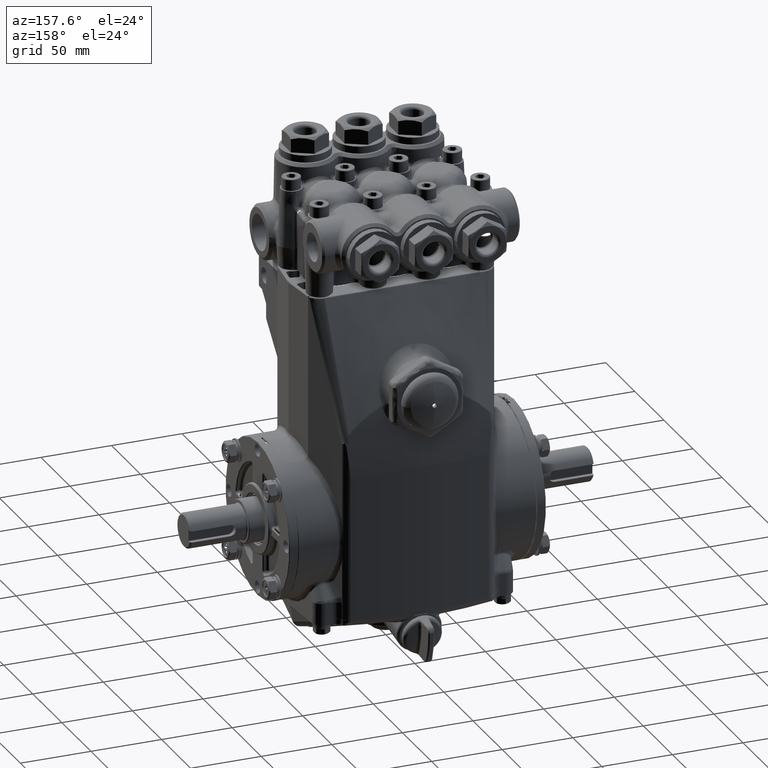
[diagram: clean part render]
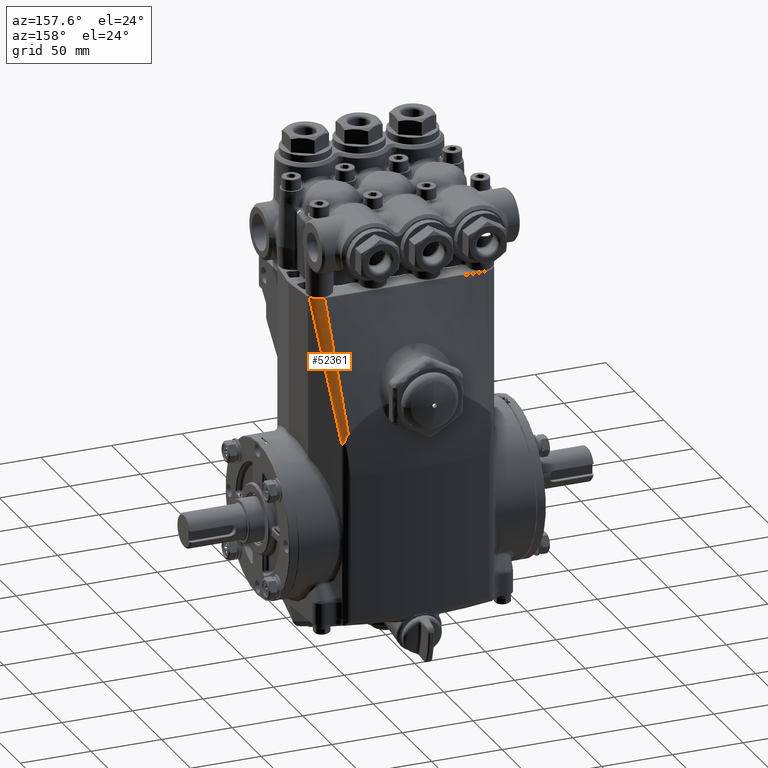
[diagram: same view with one face highlighted and labeled with its STEP entity id]
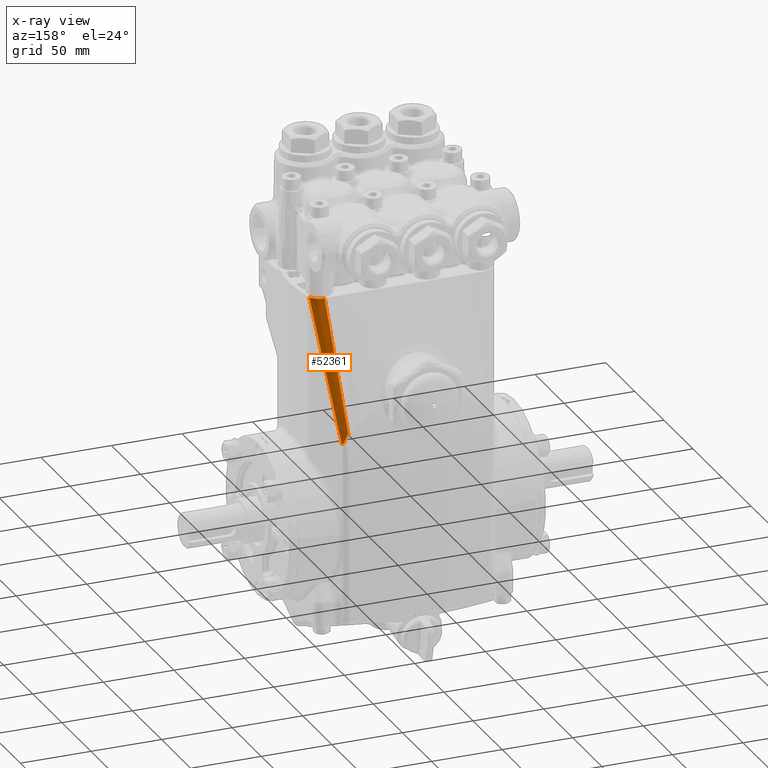
[diagram: x-ray of the same camera — body ghosted, the highlighted face saturated]
A machine part, auxiliary view. The second image highlights one B-rep face of the part: STEP entity #52361.
The next image is the same camera in x-ray: the body ghosted, the highlighted face saturated — about 0% of this face is hidden behind the body in this view.
In plain terms, the highlighted face is a freeform B-spline surface patch.
Its self-contained STEP definition (entity closure, byte-faithful):
#950 = CARTESIAN_POINT ( 'NONE',  ( 2.578741269179713580, 1.076203223235405515, 6.515748031496061188 ) ) ;
#2808 = CARTESIAN_POINT ( 'NONE',  ( 2.342847266420385210, 1.629531390957924097, 5.259094304102589490 ) ) ;
#2970 = CARTESIAN_POINT ( 'NONE',  ( 2.078564588323855045, 2.221814779649408766, 2.770839816914288711 ) ) ;
#3487 = CARTESIAN_POINT ( 'NONE',  ( 2.370840981384998880, 1.563867529971241233, 4.815523516165016282 ) ) ;
#3645 = CARTESIAN_POINT ( 'NONE',  ( 2.086370469878879863, 2.212679244017106583, 2.765750601190421598 ) ) ;
#3697 = CARTESIAN_POINT ( 'NONE',  ( 2.419380578230820422, 1.450009924981134679, 5.200656286739674172 ) ) ;
#4159 = CARTESIAN_POINT ( 'NONE',  ( 1.896433767760507871, 2.475263124701502004, 2.168272852402046258 ) ) ;
#4617 = VERTEX_POINT ( 'NONE', #134144 ) ;
#4846 = FACE_OUTER_BOUND ( 'NONE', #29664, .T. ) ;
#8313 = CARTESIAN_POINT ( 'NONE',  ( 2.001753787168236709, 2.244087834222828981, 2.984545616857926298 ) ) ;
#8986 = CARTESIAN_POINT ( 'NONE',  ( 2.069731911945700720, 2.226127944432313210, 2.815925666837383545 ) ) ;
#12101 = CARTESIAN_POINT ( 'NONE',  ( 2.137346422861023054, 2.111567406758417587, 2.917975607118220793 ) ) ;
#13254 = CARTESIAN_POINT ( 'NONE',  ( 2.087632747411837020, 2.228179006147618768, 2.498972627154562698 ) ) ;
#13963 = CARTESIAN_POINT ( 'NONE',  ( 2.407204766175933486, 1.478570294039977862, 5.843025977975107033 ) ) ;
#14654 = CARTESIAN_POINT ( 'NONE',  ( 2.106682754440166061, 2.183494082552249527, 3.117795051690434693 ) ) ;
#15010 = CARTESIAN_POINT ( 'NONE',  ( 2.265549473396439861, 1.302610125807876607, 6.520809890789598384 ) ) ;
#15335 = CARTESIAN_POINT ( 'NONE',  ( 2.133543402384709076, 2.120488016555335697, 2.885989440036138554 ) ) ;
#15402 = EDGE_CURVE ( 'NONE', #70536, #54470, #25697, .T. ) ;
#16039 = CARTESIAN_POINT ( 'NONE',  ( 1.929606984645301226, 2.371916305126036573, 2.557822401772311682 ) ) ;
#20325 = CARTESIAN_POINT ( 'NONE',  ( 2.056971949321643844, 1.955863575897020867, 4.116183297647427075 ) ) ;
#22471 = ORIENTED_EDGE ( 'NONE', *, *, #55210, .F. ) ;
#23444 = CARTESIAN_POINT ( 'NONE',  ( 2.254094337513128377, 1.302989629517063097, 6.520877784317116621 ) ) ;
#24126 = CARTESIAN_POINT ( 'NONE',  ( 2.523428441768119423, 1.171241725336603423, 6.517414877838540122 ) ) ;
#24448 = CARTESIAN_POINT ( 'NONE',  ( 2.254681818407403338, 1.268730751780510202, 6.646774213595586289 ) ) ;
#24670 = CARTESIAN_POINT ( 'NONE',  ( 2.565113688565864081, 1.108168954129927108, 6.399072438638245153 ) ) ;
#24815 = CARTESIAN_POINT ( 'NONE',  ( 2.578741269179713580, 1.076203223235405515, 6.515748031496061188 ) ) ;
#25145 = CARTESIAN_POINT ( 'NONE',  ( 2.085203970099893667, 2.233876102617321724, 2.923210346434277795 ) ) ;
#25302 = CARTESIAN_POINT ( 'NONE',  ( 2.113930270725304261, 2.166493841535457765, 2.742919209524317559 ) ) ;
#25500 = CARTESIAN_POINT ( 'NONE',  ( 2.431479503625797456, 1.251484891527865129, 6.519093714976538223 ) ) ;
#25697 = B_SPLINE_CURVE_WITH_KNOTS ( 'NONE', 3,
 ( #2970, #3645, #67325, #79207, #57525, #121912, #25302, #131027 ),
 .UNSPECIFIED., .F., .F.,
 ( 4, 2, 2, 4 ),
 ( 0.006197228679374548743, 0.007185694159532395389, 0.007679926899611316110, 0.008174159639690236831 ),
 .UNSPECIFIED. ) ;
#28307 = CARTESIAN_POINT ( 'NONE',  ( 2.078564588323855045, 2.221814779649408766, 2.770839816914288711 ) ) ;
#29664 = EDGE_LOOP ( 'NONE', ( #118009, #80107, #124715, #44694, #22471 ) ) ;
#30132 = CARTESIAN_POINT ( 'NONE',  ( 1.978388578950748711, 2.220830290808069041, 3.123495715211229484 ) ) ;
#32053 = CARTESIAN_POINT ( 'NONE',  ( 2.026352038655822252, 2.239235650669866295, 2.945270539709730517 ) ) ;
#32195 = CARTESIAN_POINT ( 'NONE',  ( 2.027881314845334959, 2.059957115943923167, 3.726161280968987910 ) ) ;
#32485 = EDGE_CURVE ( 'NONE', #111665, #92347, #79943, .T. ) ;
#34266 = CARTESIAN_POINT ( 'NONE',  ( 2.605666349592137276, 1.013046020268494329, 6.746829312595115979 ) ) ;
#35632 = CARTESIAN_POINT ( 'NONE',  ( 1.980158244783918331, 2.215925803143892203, 3.141747226529187920 ) ) ;
#36394 = B_SPLINE_CURVE_WITH_KNOTS ( 'NONE', 3,
 ( #950, #24670, #99575, #118479, #64611, #3697, #85621, #43600, #129686, #86308, #12101, #54801 ),
 .UNSPECIFIED., .F., .F.,
 ( 4, 2, 2, 2, 2, 4 ),
 ( 0.004637689603018759453, 0.08750035464542320340, 0.2250003084241771756, 0.5000002159816850922, 0.7750001235391930088, 0.9011339633073934818 ),
 .UNSPECIFIED. ) ;
#37038 = CARTESIAN_POINT ( 'NONE',  ( 1.963331270966063746, 2.267981324724265946, 2.947115148274536356 ) ) ;
#42564 = CARTESIAN_POINT ( 'NONE',  ( 1.969283401333570938, 2.249277433038161078, 3.017030524756072474 ) ) ;
#43600 = CARTESIAN_POINT ( 'NONE',  ( 2.274451880622001987, 1.789964013526333275, 4.044763416982778637 ) ) ;
#44694 = ORIENTED_EDGE ( 'NONE', *, *, #32485, .T. ) ;
#44777 = CARTESIAN_POINT ( 'NONE',  ( 2.202150233065117924, 1.428197325380847538, 6.064137633037693931 ) ) ;
#45476 = CARTESIAN_POINT ( 'NONE',  ( 2.056971949321643844, 1.955863575897020867, 4.116183297647427075 ) ) ;
#46171 = CARTESIAN_POINT ( 'NONE',  ( 2.064620467235923407, 2.282158092840731012, 2.305505038962808229 ) ) ;
#46846 = CARTESIAN_POINT ( 'NONE',  ( 1.999260438597442180, 2.435470786114593000, 2.144875713876672751 ) ) ;
#47215 = CARTESIAN_POINT ( 'NONE',  ( 2.547832993698884163, 1.139028230020979526, 6.516906636208922521 ) ) ;
#47540 = CARTESIAN_POINT ( 'NONE',  ( 2.027881314845334959, 2.059957115943923167, 3.726161280968987910 ) ) ;
#49036 = EDGE_CURVE ( 'NONE', #4617, #54470, #36394, .T. ) ;
#50998 = CARTESIAN_POINT ( 'NONE',  ( 2.035675016195813480, 2.236992360180967143, 2.924478765675068370 ) ) ;
#51682 = CARTESIAN_POINT ( 'NONE',  ( 2.078564588323855045, 2.221814779649408766, 2.770839816914288711 ) ) ;
#52361 = ADVANCED_FACE ( 'NONE', ( #4846 ), #70339, .F. ) ;
#53884 = CARTESIAN_POINT ( 'NONE',  ( 2.141102833431372421, 1.640556580735810011, 5.285820039345583865 ) ) ;
#54470 = VERTEX_POINT ( 'NONE', #111138 ) ;
#54801 = CARTESIAN_POINT ( 'NONE',  ( 2.116276716150627291, 2.160989868001935932, 2.740471938754866610 ) ) ;
#55210 = EDGE_CURVE ( 'NONE', #4617, #92347, #85176, .T. ) ;
#55972 = CARTESIAN_POINT ( 'NONE',  ( 2.214051862333661802, 1.931642187036901603, 4.091001638619363945 ) ) ;
#56685 = CARTESIAN_POINT ( 'NONE',  ( 2.041550150992671675, 2.336273312671742985, 2.112079036836429058 ) ) ;
#57360 = CARTESIAN_POINT ( 'NONE',  ( 2.186378929579909869, 1.481371582545127685, 5.869664288253999551 ) ) ;
#57525 = CARTESIAN_POINT ( 'NONE',  ( 2.105833752788412117, 2.182577919191674543, 2.750555192226245893 ) ) ;
#57717 = CARTESIAN_POINT ( 'NONE',  ( 2.464642729753391048, 1.228338974430605468, 6.518569719689467412 ) ) ;
#58753 = CARTESIAN_POINT ( 'NONE',  ( 2.514342318431109558, 1.227261550303916593, 5.972439309888373238 ) ) ;
#63732 = CARTESIAN_POINT ( 'NONE',  ( 1.969283401333570938, 2.249277433038161078, 3.017030524756072474 ) ) ;
#64611 = CARTESIAN_POINT ( 'NONE',  ( 2.490782990709670131, 1.282523826957326474, 5.779363762767575352 ) ) ;
#64709 = B_SPLINE_CURVE_WITH_KNOTS ( 'NONE', 3,
 ( #42564, #73387, #116756, #125931, #104229, #127965, #104896, #8313, #84582, #32053, #50998, #82520, #74766, #8986, #136398, #51682 ),
 .UNSPECIFIED., .F., .F.,
 ( 4, 2, 2, 2, 2, 2, 2, 4 ),
 ( -6.000000001276593259E-08, 0.0002197440913770516116, 0.0004395481827541159858, 0.0008791563655082139427, 0.001758372731016396304, 0.003516805462032758858, 0.005275238193049121629, 0.007033670924065483533 ),
 .UNSPECIFIED. ) ;
#66151 = CARTESIAN_POINT ( 'NONE',  ( 2.570770100166592798, 1.093725315762310135, 6.516019998745035124 ) ) ;
#66474 = CARTESIAN_POINT ( 'NONE',  ( 2.141102833431372421, 1.640556580735810011, 5.285820039345583865 ) ) ;
#67161 = CARTESIAN_POINT ( 'NONE',  ( 2.583105798428203315, 1.065965502293462208, 6.553038627379630832 ) ) ;
#67325 = CARTESIAN_POINT ( 'NONE',  ( 2.093446728250653699, 2.202984832081895217, 2.760677852182992442 ) ) ;
#67864 = CARTESIAN_POINT ( 'NONE',  ( 2.514403341186182583, 1.227118411398908870, 6.815911806478998969 ) ) ;
#70339 =( BOUNDED_SURFACE ( )  B_SPLINE_SURFACE ( 2, 3, ( 
 ( #34266, #67161, #99357, #58753, #78354, #89527, #3487, #76978, #122428, #121049, #15335, #13254, #46171, #56685 ),
 ( #67864, #110568, #109867, #98660, #13963, #2808, #88842, #55972, #90231, #14654, #25145, #119659, #131542, #46846 ),
 ( #120345, #24448, #79746, #44777, #57360, #66474, #88164, #45476, #47540, #35632, #37038, #16039, #100046, #4159 ) ),
 .UNSPECIFIED., .F., .F., .F. ) 
 B_SPLINE_SURFACE_WITH_KNOTS ( ( 3, 3 ),
 ( 4, 2, 2, 2, 2, 2, 4 ),
 ( 0.000000000000000000, 1.000000000000000000 ),
 ( -0.05579888569863813291, -0.04039671253618186408, -0.02499453937372558832, 0.005809806951186959750, 0.03661415327609950782, 0.05201632643855577665, 0.06741849960101205241 ),
 .UNSPECIFIED. ) 
 GEOMETRIC_REPRESENTATION_ITEM ( )  RATIONAL_B_SPLINE_SURFACE ( (
 ( 1.000000000000000000, 1.000000000000000000, 1.000000000000000000, 1.000000000000000000, 1.000000000000000000, 1.000000000000000000, 1.000000000000000000, 1.000000000000000000, 1.000000000000000000, 1.000000000000000000, 1.000000000000000000, 1.000000000000000000, 1.000000000000000000, 1.000000000000000000),
 ( 0.8249655899556018745, 0.8281912456652233967, 0.8315314859655612567, 0.8384645648586018796, 0.8420556766761636558, 0.8532132272860135647, 0.8611688039213737378, 0.8781266334368532656, 0.8871406962535873797, 0.9012423333731803821, 0.9060298368779703404, 0.9157270827393148016, 0.9206428270897365485, 0.9255808091159235529),
 ( 1.000000000000000000, 1.000000000000000000, 1.000000000000000000, 1.000000000000000000, 1.000000000000000000, 1.000000000000000000, 1.000000000000000000, 1.000000000000000000, 1.000000000000000000, 1.000000000000000000, 1.000000000000000000, 1.000000000000000000, 1.000000000000000000, 1.000000000000000000) ) ) 
 REPRESENTATION_ITEM ( '' )  SURFACE ( )  );
#70536 = VERTEX_POINT ( 'NONE', #28307 ) ;
#73387 = CARTESIAN_POINT ( 'NONE',  ( 1.971604188781834521, 2.248943872800770016, 3.015350222261026225 ) ) ;
#74766 = CARTESIAN_POINT ( 'NONE',  ( 2.058319616543888397, 2.230433463084998458, 2.860153329479801165 ) ) ;
#74911 = CARTESIAN_POINT ( 'NONE',  ( 2.202150233065117924, 1.428197325380847538, 6.064137633037693931 ) ) ;
#76978 = CARTESIAN_POINT ( 'NONE',  ( 2.274451880622001987, 1.789964013526333275, 4.044763416982778637 ) ) ;
#77346 = CARTESIAN_POINT ( 'NONE',  ( 2.318579141338136473, 1.297591857757062428, 6.520382073639776621 ) ) ;
#78354 = CARTESIAN_POINT ( 'NONE',  ( 2.490782990709670131, 1.282523826957326474, 5.779363762767575352 ) ) ;
#79207 = CARTESIAN_POINT ( 'NONE',  ( 2.102880983442067198, 2.187768918881022540, 2.753086199699649406 ) ) ;
#79746 = CARTESIAN_POINT ( 'NONE',  ( 2.236084617907955874, 1.321859438874137593, 6.452719553155735532 ) ) ;
#79943 = B_SPLINE_CURVE_WITH_KNOTS ( 'NONE', 3,
 ( #63732, #30132, #94552, #32195, #20325, #95242, #53884, #115548, #74911, #96599, #118264, #126074 ),
 .UNSPECIFIED., .F., .F.,
 ( 4, 2, 2, 2, 2, 4 ),
 ( 0.005111012483131041097, 0.09547011241999034392, 0.4258638922745208166, 0.7562576721290511506, 0.9214545620563164841, 0.9958867908275451653 ),
 .UNSPECIFIED. ) ;
#80107 = ORIENTED_EDGE ( 'NONE', *, *, #15402, .F. ) ;
#82520 = CARTESIAN_POINT ( 'NONE',  ( 2.051699096379327347, 2.232587678940594511, 2.881935155951276251 ) ) ;
#84582 = CARTESIAN_POINT ( 'NONE',  ( 2.008387420742251628, 2.242849625259780488, 2.974987825606482339 ) ) ;
#85176 = B_SPLINE_CURVE_WITH_KNOTS ( 'NONE', 3,
 ( #24815, #99719, #66151, #47215, #24126, #57717, #25500, #119322, #77346, #15010, #23444, #120027 ),
 .UNSPECIFIED., .F., .F.,
 ( 4, 2, 2, 2, 2, 4 ),
 ( 0.000000000000000000, 0.06847865877410910795, 0.3524106902538846064, 0.6363427217336601327, 0.9202747532134349928, 1.000000000000000000 ),
 .UNSPECIFIED. ) ;
#85621 = CARTESIAN_POINT ( 'NONE',  ( 2.370840981384998880, 1.563867529971241233, 4.815523516165016282 ) ) ;
#86308 = CARTESIAN_POINT ( 'NONE',  ( 2.158462329565132620, 2.062036575833714913, 3.095446433345371506 ) ) ;
#88164 = CARTESIAN_POINT ( 'NONE',  ( 2.113561063574255883, 1.746169220545683132, 4.896017564383725151 ) ) ;
#88842 = CARTESIAN_POINT ( 'NONE',  ( 2.299921550685326554, 1.730220714815038141, 4.869719321444399007 ) ) ;
#89527 = CARTESIAN_POINT ( 'NONE',  ( 2.419380578230820422, 1.450009924981134679, 5.200656286739674172 ) ) ;
#89652 = CARTESIAN_POINT ( 'NONE',  ( 2.242889468066143088, 1.303183471566980778, 6.520931740362723161 ) ) ;
#90231 = CARTESIAN_POINT ( 'NONE',  ( 2.171109568603361684, 2.032370397332657674, 3.701658990816812711 ) ) ;
#92347 = VERTEX_POINT ( 'NONE', #89652 ) ;
#94552 = CARTESIAN_POINT ( 'NONE',  ( 1.987364774915985066, 2.192373398771772397, 3.229997992615773139 ) ) ;
#95242 = CARTESIAN_POINT ( 'NONE',  ( 2.113561063574255883, 1.746169220545683132, 4.896017564383725151 ) ) ;
#95662 = EDGE_CURVE ( 'NONE', #111665, #70536, #64709, .T. ) ;
#96599 = CARTESIAN_POINT ( 'NONE',  ( 2.226762278537175899, 1.351072223210090240, 6.345969643013950723 ) ) ;
#98660 = CARTESIAN_POINT ( 'NONE',  ( 2.428652043501072111, 1.428262178878300093, 6.037647731654220529 ) ) ;
#99357 = CARTESIAN_POINT ( 'NONE',  ( 2.560585973950515903, 1.118789453179791948, 6.359217476521575207 ) ) ;
#99575 = CARTESIAN_POINT ( 'NONE',  ( 2.551398232829876545, 1.140340810571316865, 6.282371958445046367 ) ) ;
#99719 = CARTESIAN_POINT ( 'NONE',  ( 2.574905111465053409, 1.084969362634434109, 6.515913147113437276 ) ) ;
#100046 = CARTESIAN_POINT ( 'NONE',  ( 1.912934457154228829, 2.423712075035871383, 2.363097743479620760 ) ) ;
#104229 = CARTESIAN_POINT ( 'NONE',  ( 1.980521336883294126, 2.247603629403292835, 3.007863104263380549 ) ) ;
#104896 = CARTESIAN_POINT ( 'NONE',  ( 1.990657562505185663, 2.245983919444319188, 2.997701605078443521 ) ) ;
#109867 = CARTESIAN_POINT ( 'NONE',  ( 2.471535058323093281, 1.327673016952173324, 6.426822189469408642 ) ) ;
#110568 = CARTESIAN_POINT ( 'NONE',  ( 2.492970227129208016, 1.277393304293375831, 6.621363530560992139 ) ) ;
#111138 = CARTESIAN_POINT ( 'NONE',  ( 2.116276716150627291, 2.160989868001935932, 2.740471938754866610 ) ) ;
#111665 = VERTEX_POINT ( 'NONE', #116529 ) ;
#115548 = CARTESIAN_POINT ( 'NONE',  ( 2.186378929579909869, 1.481371582545127685, 5.869664288253999551 ) ) ;
#116529 = CARTESIAN_POINT ( 'NONE',  ( 1.969283401333570938, 2.249277433038161078, 3.017030524756072474 ) ) ;
#116756 = CARTESIAN_POINT ( 'NONE',  ( 1.973946976392833008, 2.248599357204132065, 3.013515580454662057 ) ) ;
#118009 = ORIENTED_EDGE ( 'NONE', *, *, #49036, .T. ) ;
#118264 = CARTESIAN_POINT ( 'NONE',  ( 2.234738040199931053, 1.327124236712275307, 6.433462721648049332 ) ) ;
#118479 = CARTESIAN_POINT ( 'NONE',  ( 2.514342318431109558, 1.227261550303916593, 5.972439309888373238 ) ) ;
#119322 = CARTESIAN_POINT ( 'NONE',  ( 2.357150544581604557, 1.286561036961104465, 6.520030655279449583 ) ) ;
#119659 = CARTESIAN_POINT ( 'NONE',  ( 2.042237225648480869, 2.334661666142283210, 2.534052278334617547 ) ) ;
#120027 = CARTESIAN_POINT ( 'NONE',  ( 2.242889468066143088, 1.303183471566980778, 6.520931740362723161 ) ) ;
#120345 = CARTESIAN_POINT ( 'NONE',  ( 2.273209536691880306, 1.215653160743623395, 6.840860013023599251 ) ) ;
#121049 = CARTESIAN_POINT ( 'NONE',  ( 2.156531210261403597, 2.066566333663618416, 3.079474569265922224 ) ) ;
#121912 = CARTESIAN_POINT ( 'NONE',  ( 2.111350010579472247, 2.171960448266391897, 2.745480503865430855 ) ) ;
#122428 = CARTESIAN_POINT ( 'NONE',  ( 2.226615536731508804, 1.902172023085083374, 3.659126657212345091 ) ) ;
#124715 = ORIENTED_EDGE ( 'NONE', *, *, #95662, .F. ) ;
#125931 = CARTESIAN_POINT ( 'NONE',  ( 1.978378808574838832, 2.247933082793946991, 3.009791413277802974 ) ) ;
#126074 = CARTESIAN_POINT ( 'NONE',  ( 2.242889468066143088, 1.303183471566980778, 6.520931740362723161 ) ) ;
#127965 = CARTESIAN_POINT ( 'NONE',  ( 1.986756367771373322, 2.246624480287164882, 3.001904483647719335 ) ) ;
#129686 = CARTESIAN_POINT ( 'NONE',  ( 2.226615536731508804, 1.902172023085083374, 3.659126657212345091 ) ) ;
#131027 = CARTESIAN_POINT ( 'NONE',  ( 2.116276716150627291, 2.160989868001935932, 2.740471938754866610 ) ) ;
#131542 = CARTESIAN_POINT ( 'NONE',  ( 2.020750001317166422, 2.385063483496169923, 2.339468058897046454 ) ) ;
#134144 = CARTESIAN_POINT ( 'NONE',  ( 2.578741269179713580, 1.076203223235405515, 6.515748031496061188 ) ) ;
#136398 = CARTESIAN_POINT ( 'NONE',  ( 2.074511941278426530, 2.223974776708035783, 2.793438250434746806 ) ) ;